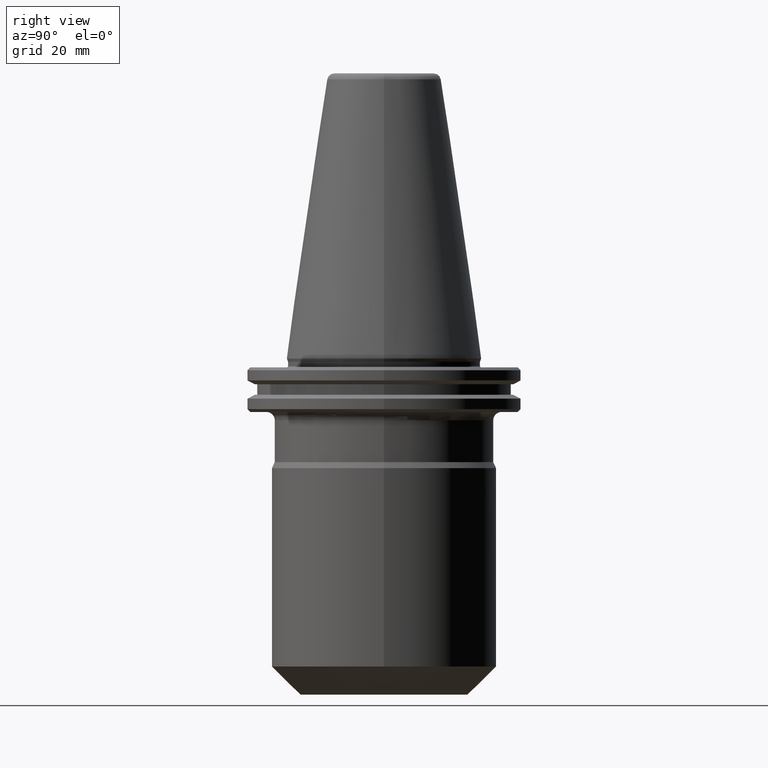
[diagram: clean part render]
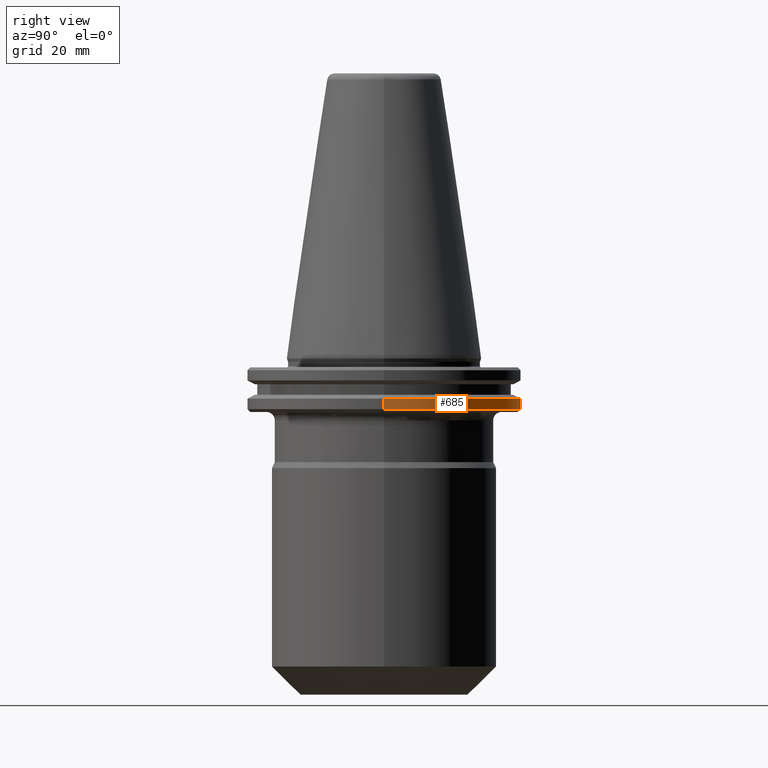
[diagram: same view with one face highlighted and labeled with its STEP entity id]
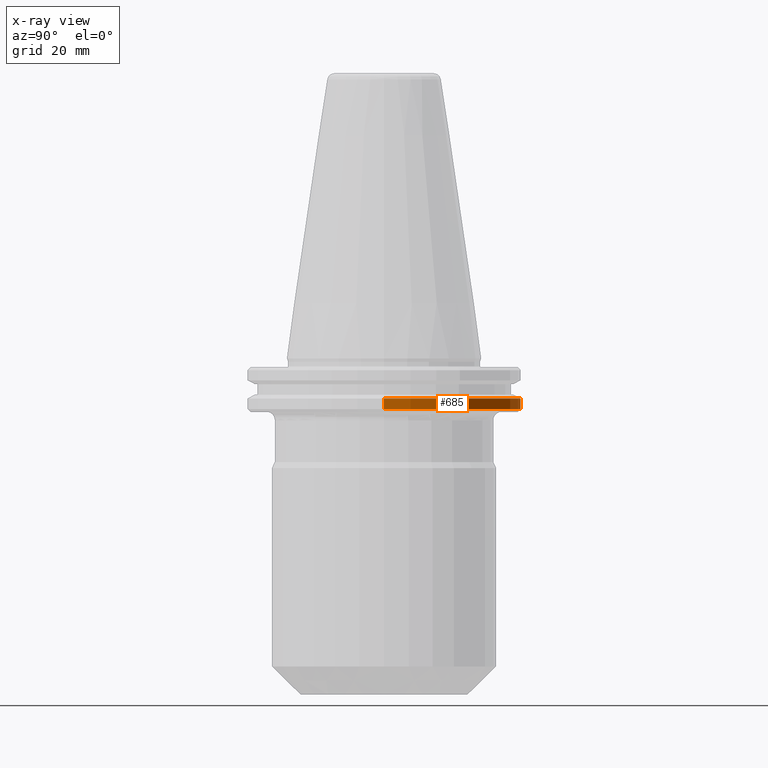
[diagram: x-ray of the same camera — body ghosted, the highlighted face saturated]
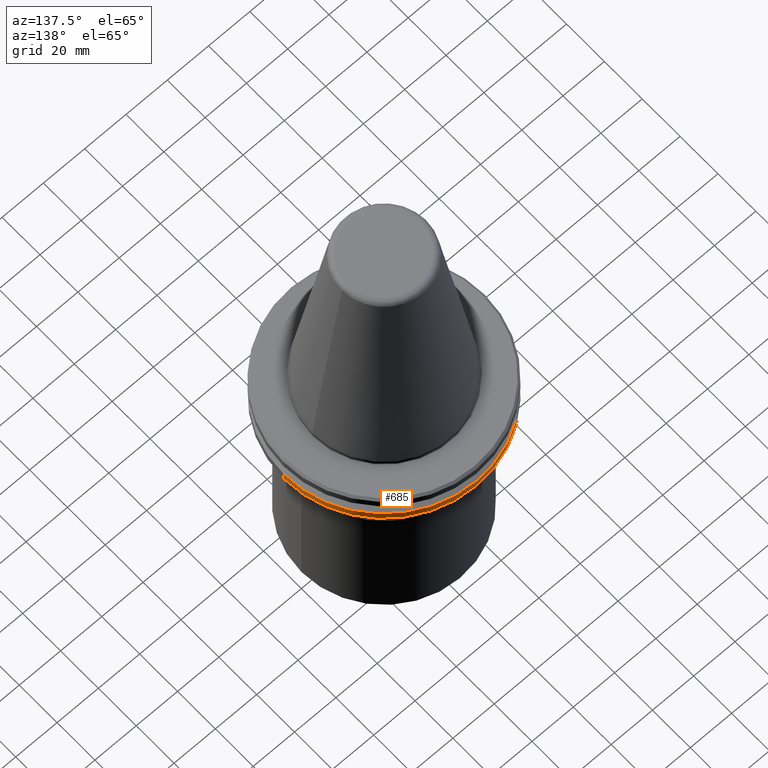
[diagram: same view with one face highlighted and labeled with its STEP entity id]
A machine part, right view. The second image highlights one B-rep face of the part: STEP entity #685.
The next image is the same camera in x-ray: the body ghosted, the highlighted face saturated — about 0% of this face is hidden behind the body in this view.
A second angle (auxiliary view) of the same face is appended — the face is thin or edge-on in the first view.
In plain terms, the highlighted cylindrical surface (partial cylindrical patch) has radius 48.75 mm, axis along (-0, -0, 1).
Its self-contained STEP definition (entity closure, byte-faithful):
#14 = DIRECTION ( 'NONE',  ( -0.0000000000000000000, -0.0000000000000000000, 1.000000000000000000 ) ) ;
#39 = DIRECTION ( 'NONE',  ( -0.0000000000000000000, -0.0000000000000000000, 1.000000000000000000 ) ) ;
#59 = VECTOR ( 'NONE', #950, 1000.000000000000000 ) ;
#65 = CARTESIAN_POINT ( 'NONE',  ( 0.0000000000000000000, 0.0000000000000000000, -18.09999999999950400 ) ) ;
#116 = CARTESIAN_POINT ( 'NONE',  ( -48.75000000000018500, 5.970153145843369200E-015, -18.09999999999950400 ) ) ;
#133 = VERTEX_POINT ( 'NONE', #883 ) ;
#146 = EDGE_CURVE ( 'NONE', #867, #133, #551, .T. ) ;
#191 = EDGE_CURVE ( 'NONE', #832, #558, #671, .T. ) ;
#195 = CIRCLE ( 'NONE', #1005, 48.75000000000018500 ) ;
#252 = EDGE_LOOP ( 'NONE', ( #419, #705, #599, #830 ) ) ;
#254 = CARTESIAN_POINT ( 'NONE',  ( -48.75000000000018500, 5.970153145843369200E-015, 101.7499999999999600 ) ) ;
#350 = DIRECTION ( 'NONE',  ( -0.0000000000000000000, -0.0000000000000000000, 1.000000000000000000 ) ) ;
#376 = CIRCLE ( 'NONE', #1054, 48.75000000000018500 ) ;
#419 = ORIENTED_EDGE ( 'NONE', *, *, #596, .T. ) ;
#440 = VECTOR ( 'NONE', #14, 1000.000000000000000 ) ;
#444 = DIRECTION ( 'NONE',  ( 1.000000000000000000, 0.0000000000000000000, 0.0000000000000000000 ) ) ;
#469 = AXIS2_PLACEMENT_3D ( 'NONE', #636, #827, #708 ) ;
#551 = LINE ( 'NONE', #908, #59 ) ;
#558 = VERTEX_POINT ( 'NONE', #718 ) ;
#596 = EDGE_CURVE ( 'NONE', #867, #832, #376, .T. ) ;
#599 = ORIENTED_EDGE ( 'NONE', *, *, #1003, .F. ) ;
#636 = CARTESIAN_POINT ( 'NONE',  ( 0.0000000000000000000, 0.0000000000000000000, 101.7499999999999600 ) ) ;
#671 = LINE ( 'NONE', #254, #440 ) ;
#685 = ADVANCED_FACE ( 'NONE', ( #906 ), #878, .T. ) ;
#705 = ORIENTED_EDGE ( 'NONE', *, *, #191, .T. ) ;
#708 = DIRECTION ( 'NONE',  ( 1.000000000000000000, 0.0000000000000000000, 0.0000000000000000000 ) ) ;
#718 = CARTESIAN_POINT ( 'NONE',  ( -48.75000000000018500, 5.970153145843369200E-015, -14.34759526419204800 ) ) ;
#827 = DIRECTION ( 'NONE',  ( -0.0000000000000000000, -0.0000000000000000000, 1.000000000000000000 ) ) ;
#830 = ORIENTED_EDGE ( 'NONE', *, *, #146, .F. ) ;
#832 = VERTEX_POINT ( 'NONE', #116 ) ;
#848 = CARTESIAN_POINT ( 'NONE',  ( 0.0000000000000000000, 0.0000000000000000000, -14.34759526419204800 ) ) ;
#867 = VERTEX_POINT ( 'NONE', #1002 ) ;
#878 = CYLINDRICAL_SURFACE ( 'NONE', #469, 48.75000000000018500 ) ;
#883 = CARTESIAN_POINT ( 'NONE',  ( 48.75000000000018500, 0.0000000000000000000, -14.34759526419204800 ) ) ;
#906 = FACE_OUTER_BOUND ( 'NONE', #252, .T. ) ;
#908 = CARTESIAN_POINT ( 'NONE',  ( 48.75000000000018500, 0.0000000000000000000, 101.7499999999999600 ) ) ;
#950 = DIRECTION ( 'NONE',  ( -0.0000000000000000000, -0.0000000000000000000, 1.000000000000000000 ) ) ;
#1002 = CARTESIAN_POINT ( 'NONE',  ( 48.75000000000018500, 0.0000000000000000000, -18.09999999999950400 ) ) ;
#1003 = EDGE_CURVE ( 'NONE', #133, #558, #195, .T. ) ;
#1005 = AXIS2_PLACEMENT_3D ( 'NONE', #848, #350, #444 ) ;
#1054 = AXIS2_PLACEMENT_3D ( 'NONE', #65, #39, #1063 ) ;
#1063 = DIRECTION ( 'NONE',  ( 1.000000000000000000, 0.0000000000000000000, 0.0000000000000000000 ) ) ;